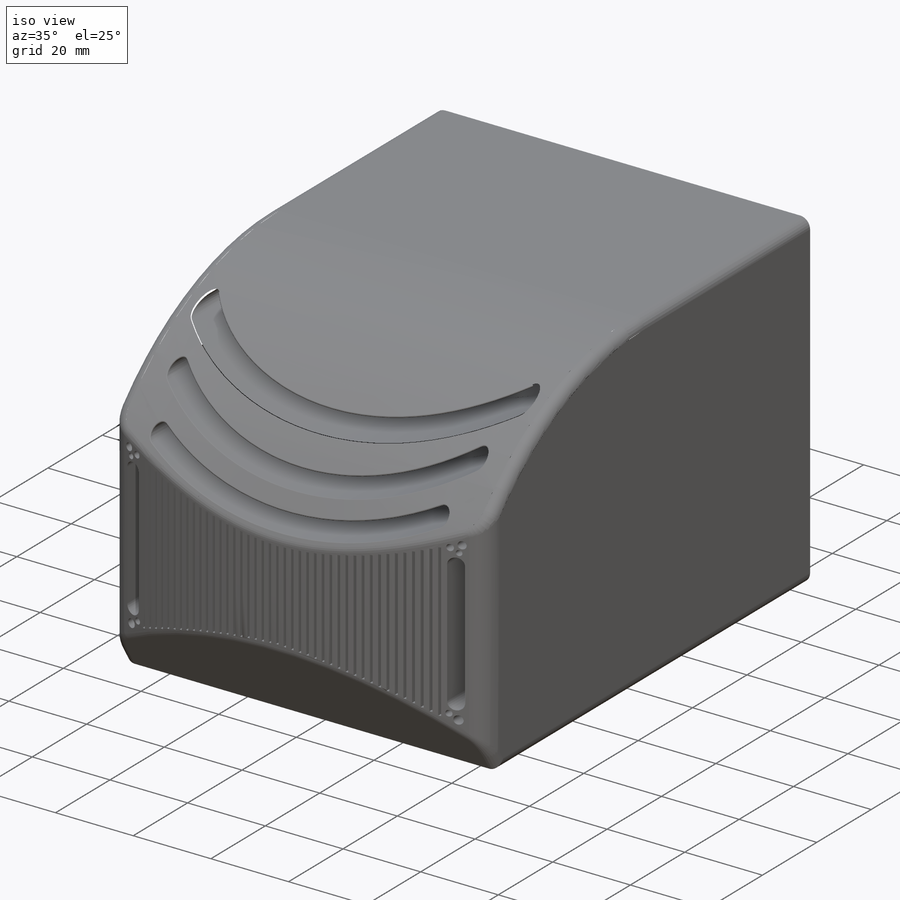
[diagram: iso view]
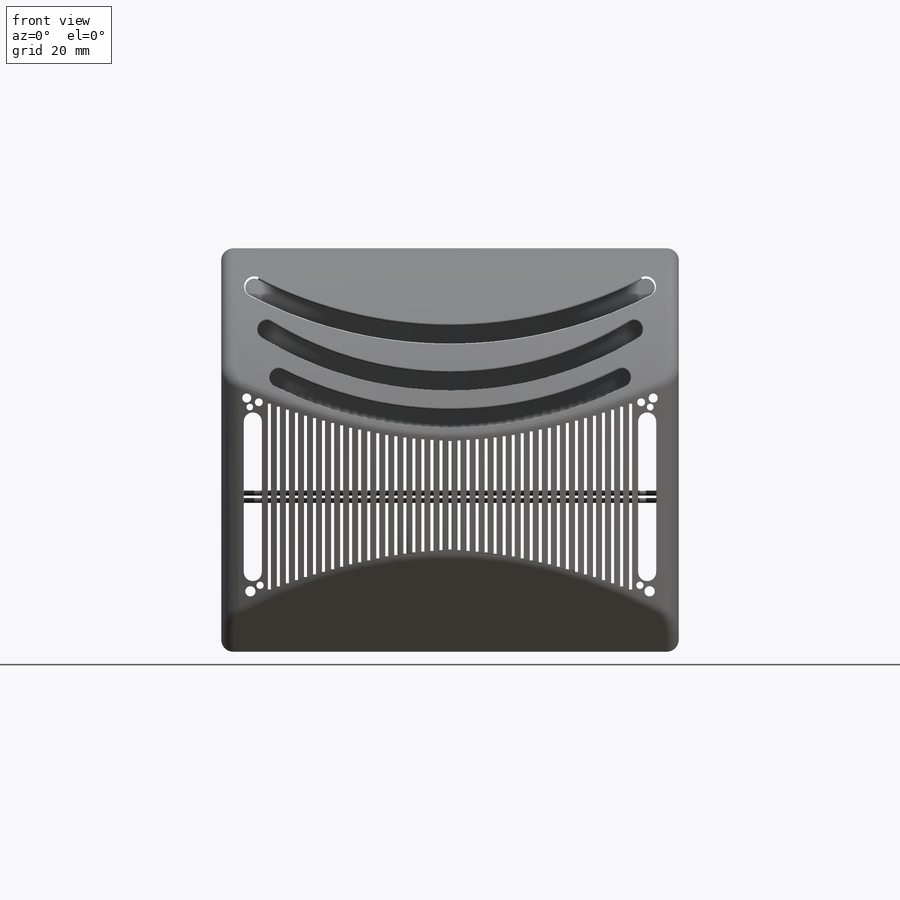
[diagram: front view]
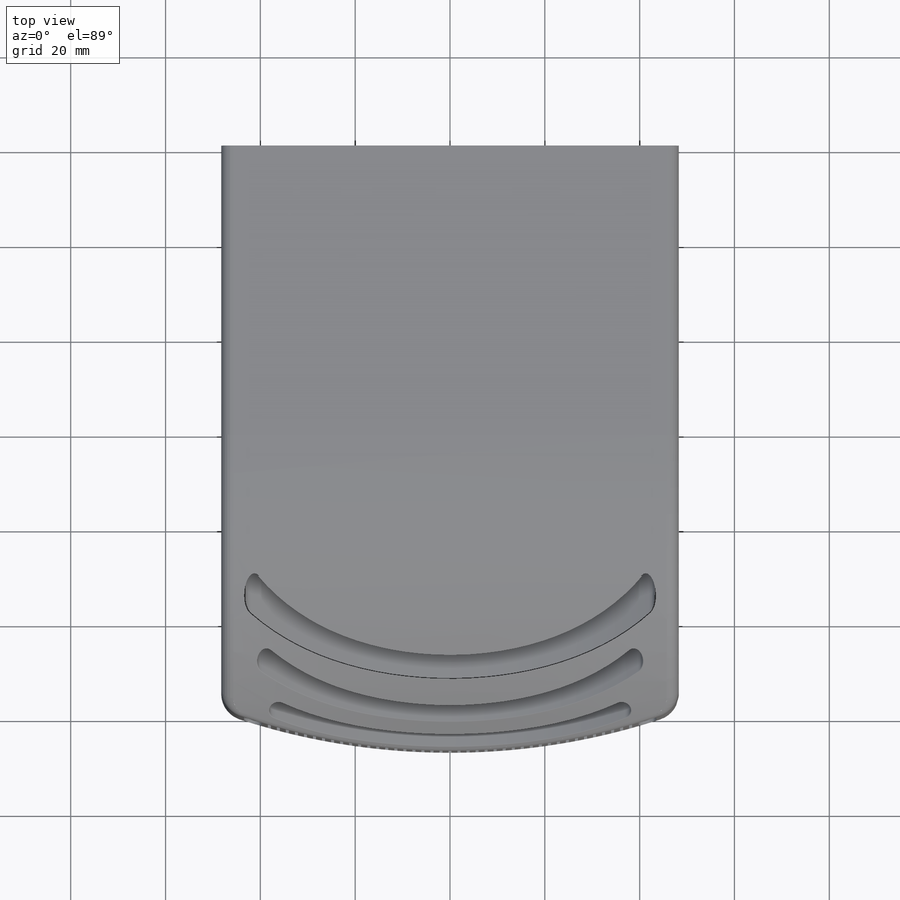
[diagram: top view]
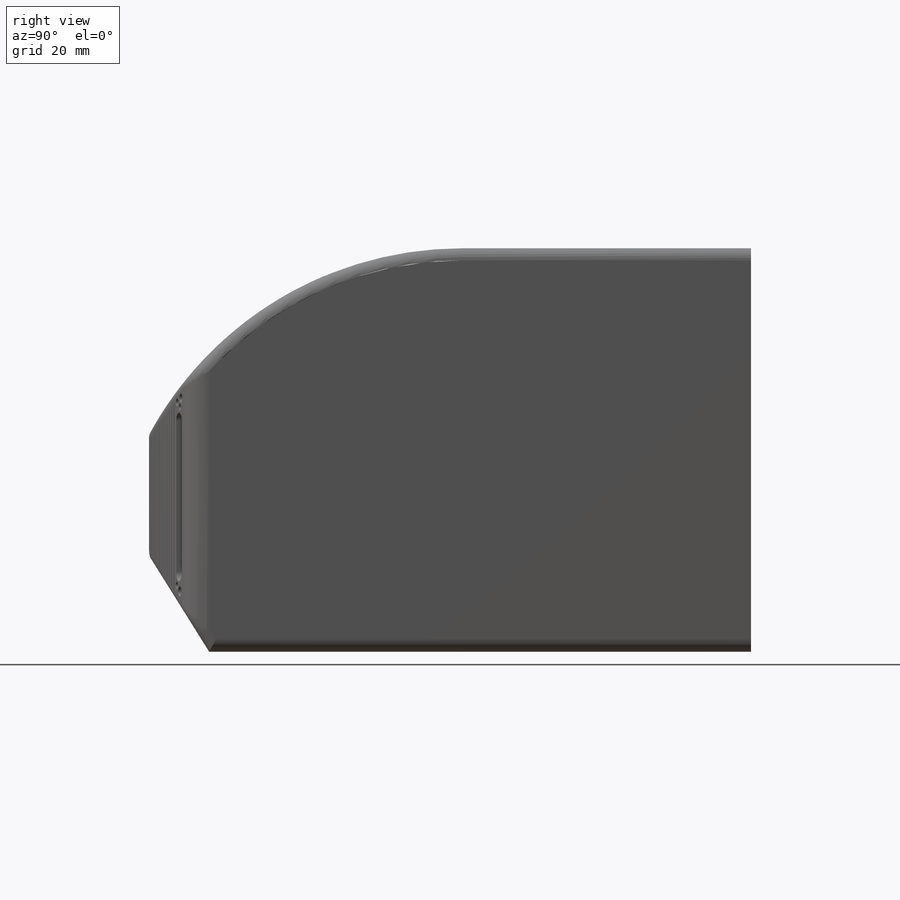
[diagram: right view]
SOLIDWORKS PART (.sldprt)
format: sldprt  version: not decoded by parser v0  size: 1,299,456 bytes
history: native  units: mm
features: sketch x8, extrude x3, cut_extrude x3, fillet x2, revolve x2, material x1 (+13 scaffold rows collapsed)
feature tree (32):
  scaffold x13  (default folders/planes/origin — collapsed)
  material  "Material <not specified>"
  sketch  "Sketch1"  dims[D1=114.3mm D2=85.09mm D3=60.96mm D4=12.7mm D5=20.32mm D6=25.4mm D7=15.24mm D8=7.62mm]
  extrude  "Boss-Extrude1"  Depth=96.52mm
  sketch  "Sketch2"  dims[D2=139.7mm D1=114.3mm D3=19.05mm]
  cut_extrude  "Cut-Extrude1"  [1 undecoded]
  fillet  "Fillet1"  Radius=2.54mm
  sketch  "Sketch3"  dims[D52=1.905mm D53=1.397mm D54=1.651mm D57=1.524mm D60=2.159mm D1=0.635mm D2=22.86mm D3=1.27mm D4=1.27mm D5=0.127mm D6=0.127mm D7=1.27mm D8=0.127mm D9=0.127mm D10=1.27mm D11=1.27mm D12=0.254mm D13=1.27mm D14=0.254mm D15=1.27mm D16=0.254mm D17=1.27mm D18=0.381mm D19=1.27mm D20=0.381mm D21=1.27mm D22=0.381mm D23=1.27mm D24=1.27mm D25=1.27mm D26=1.27mm D27=1.27mm D28=1.27mm D29=1.27mm D30=1.27mm D31=1.27mm D32=1.27mm D33=0.381mm D34=0.508mm D35=0.508mm D36=0.508mm D37=0.508mm D38=0.508mm D39=0.635mm D40=0.635mm D41=0.635mm D42=0.635mm D43=1.27mm D44=3.81mm D45=31.75mm D46=3.048mm D47=0.635mm D48=1.905mm D49=0.635mm D50=1.905mm D51=1.016mm D55=1.524mm D56=2.794mm D58=1.27mm D59=2.032mm]
  cut_extrude  "Cut-Extrude2"  [1 undecoded]
  sketch  "Sketch4"  dims[D2=0.508mm D5=1.016mm D1=5.08mm D3=1.905mm D4=1.905mm]
  extrude  "Boss-Extrude2"  Depth=93.98mm
  sketch  "Sketch5"  dims[c1.D2=3.81mm c1.D8=82.55mm c1.D9=76.2mm c1.D10=88.9mm c1.D11=88.9mm c1.D12=76.2mm c1.D13=82.55mm c1.D1=11.43mm c1.D3=10.16mm c1.D4=8.89mm c1.D5=72.39mm c1.D6=77.47mm c1.D7=82.55mm c2.D10=3.81mm c2.D12=3.81mm c2.D13=3.81mm c2.D14=~4.343367mm c3.D12=3.81mm c3.D13=3.81mm]
  cut_extrude  "Cut-Extrude3"  [1 undecoded]
  sketch  "Sketch6"  dims[c1.D1=4.318mm c1.D2=4.318mm c2.D1=~3.970571mm c3.D1=4.318mm c3.D2=0.254mm c3.D3=0.254mm c3.D4=0.254mm c3.D5=101.6mm c3.D6=6.35mm c3.D7=6.35mm c3.D8=6.35mm c3.D9=76.2mm c3.D10=82.55mm]
  revolve  "Revolve1"  Angle=68deg
  sketch  "Sketch7"  dims[D1=25.4mm]
  revolve  "Revolve2"  Angle=60deg
  fillet  "Fillet2"  Radius=0.254mm
  sketch  "Sketch9"
  extrude  "Boss-Extrude3"  Depth=0.254mm
decode coverage: 14 of 18 modeling features carry decoded parameters
note: ~ marks probable driven/reference dimensions
note: 3 parameter values undecoded
summary: no parameter record found for 3 features
note: suppression state not decoded; provenance and decode notes live in map.json
